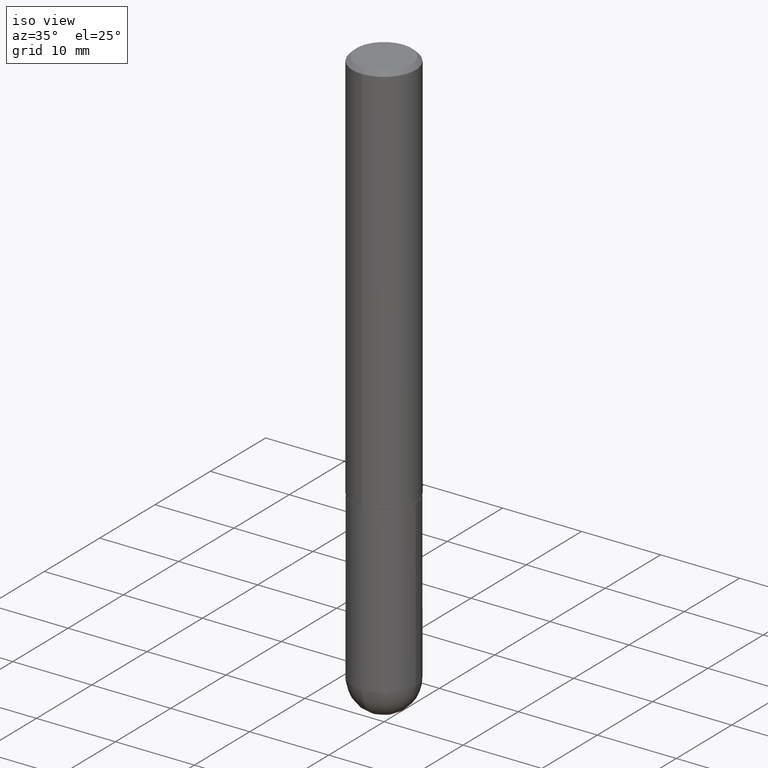
[diagram: clean part render]
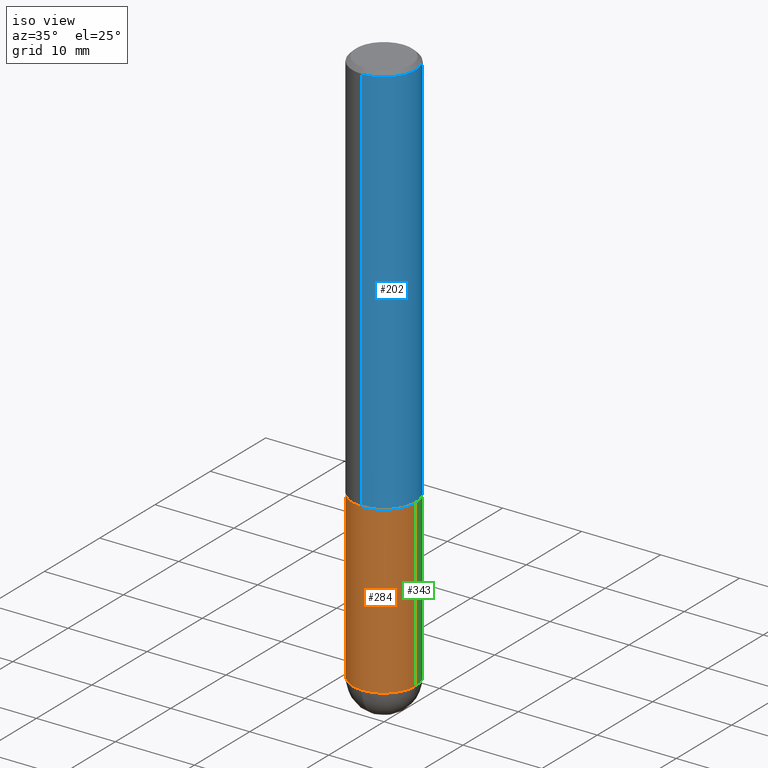
[diagram: same view with three faces highlighted in distinct colors, each labeled with its STEP entity id]
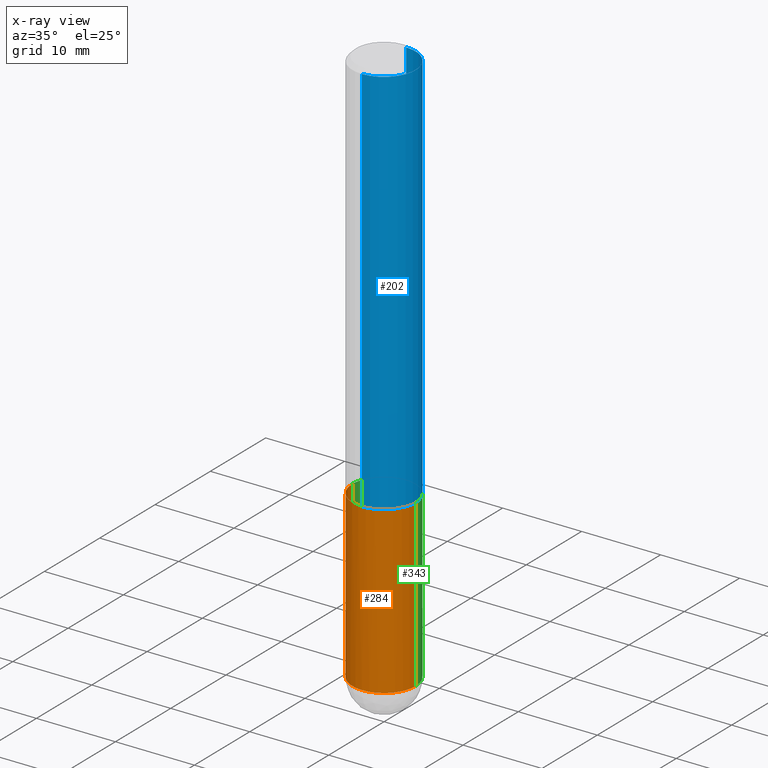
[diagram: x-ray of the same camera — body ghosted, the three highlighted faces saturated]
A machine part, iso view with three faces highlighted in distinct colors.
The next image is the same camera in x-ray (body ghosted, the three faces saturated) — at least one of them is partly hidden behind the body in this view.
Their STEP definitions:

[orange] entity #284 — the highlighted cylindrical surface (partial cylindrical patch) has radius 4.0005 mm, axis along (-0, 0, 1).
#1 = DIRECTION ( 'NONE',  ( 1.000000000000000000, -6.982962677686268288E-15, 0.000000000000000000 ) ) ;
#47 = CIRCLE ( 'NONE', #152, 0.1575000000000000011 ) ;
#49 = CARTESIAN_POINT ( 'NONE',  ( -0.1575000000000000011, 1.119104808822157801E-15, -7.747322767151475583E-30 ) ) ;
#51 = AXIS2_PLACEMENT_3D ( 'NONE', #79, #121, #275 ) ;
#64 = AXIS2_PLACEMENT_3D ( 'NONE', #351, #138, #1 ) ;
#69 = DIRECTION ( 'NONE',  ( -2.445468806185136597E-29, 3.491481338843145583E-15, 1.000000000000000000 ) ) ;
#79 = CARTESIAN_POINT ( 'NONE',  ( 0.000000000000000000, 0.000000000000000000, 0.000000000000000000 ) ) ;
#93 = VERTEX_POINT ( 'NONE', #329 ) ;
#118 = CYLINDRICAL_SURFACE ( 'NONE', #51, 0.1575000000000000011 ) ;
#120 = DIRECTION ( 'NONE',  ( -2.445468806185136597E-29, 3.491481338843145583E-15, 1.000000000000000000 ) ) ;
#121 = DIRECTION ( 'NONE',  ( -2.445468806185136597E-29, 3.491481338843145583E-15, 1.000000000000000000 ) ) ;
#125 = VERTEX_POINT ( 'NONE', #200 ) ;
#138 = DIRECTION ( 'NONE',  ( -2.445468806185136597E-29, 3.491481338843145583E-15, 1.000000000000000000 ) ) ;
#152 = AXIS2_PLACEMENT_3D ( 'NONE', #356, #69, #271 ) ;
#158 = EDGE_LOOP ( 'NONE', ( #331, #342, #280, #285, #289 ) ) ;
#163 = EDGE_CURVE ( 'NONE', #93, #320, #171, .T. ) ;
#171 = LINE ( 'NONE', #211, #326 ) ;
#186 = FACE_OUTER_BOUND ( 'NONE', #158, .T. ) ;
#199 = EDGE_CURVE ( 'NONE', #363, #125, #47, .T. ) ;
#200 = CARTESIAN_POINT ( 'NONE',  ( -1.119104808822091931E-15, -0.1575000000000101319, -2.795299999999998786 ) ) ;
#211 = CARTESIAN_POINT ( 'NONE',  ( 0.1575000000000000011, -1.099816621735586889E-15, 7.679978421878598033E-30 ) ) ;
#224 = VERTEX_POINT ( 'NONE', #240 ) ;
#229 = EDGE_CURVE ( 'NONE', #363, #224, #273, .T. ) ;
#232 = CARTESIAN_POINT ( 'NONE',  ( -0.1575000000000000011, -7.197254592168330052E-15, -2.795299999999999674 ) ) ;
#240 = CARTESIAN_POINT ( 'NONE',  ( -0.1575000000000000011, -7.197254592168330052E-15, -1.968499999999999694 ) ) ;
#247 = DIRECTION ( 'NONE',  ( 1.000000000000000000, -6.982962677686261977E-15, 0.000000000000000000 ) ) ;
#253 = CIRCLE ( 'NONE', #64, 0.1575000000000000011 ) ;
#271 = DIRECTION ( 'NONE',  ( 1.000000000000000000, -6.982962677686261977E-15, 0.000000000000000000 ) ) ;
#273 = LINE ( 'NONE', #49, #384 ) ;
#275 = DIRECTION ( 'NONE',  ( 1.000000000000000000, -6.982962677686265922E-15, 4.876176775795935232E-29 ) ) ;
#280 = ORIENTED_EDGE ( 'NONE', *, *, #295, .T. ) ;
#284 = ADVANCED_FACE ( 'NONE', ( #186 ), #118, .T. ) ;
#285 = ORIENTED_EDGE ( 'NONE', *, *, #163, .T. ) ;
#287 = AXIS2_PLACEMENT_3D ( 'NONE', #401, #120, #247 ) ;
#289 = ORIENTED_EDGE ( 'NONE', *, *, #324, .F. ) ;
#295 = EDGE_CURVE ( 'NONE', #125, #93, #412, .T. ) ;
#320 = VERTEX_POINT ( 'NONE', #322 ) ;
#322 = CARTESIAN_POINT ( 'NONE',  ( 0.1575000000000000011, -7.972797637248318399E-15, -1.968499999999999694 ) ) ;
#324 = EDGE_CURVE ( 'NONE', #224, #320, #253, .T. ) ;
#326 = VECTOR ( 'NONE', #332, 39.37007874015748143 ) ;
#329 = CARTESIAN_POINT ( 'NONE',  ( 0.1575000000000000011, -9.416176022726072770E-15, -2.795299999999999674 ) ) ;
#331 = ORIENTED_EDGE ( 'NONE', *, *, #229, .F. ) ;
#332 = DIRECTION ( 'NONE',  ( -2.445468806185136877E-29, 3.491481338843145188E-15, 1.000000000000000000 ) ) ;
#342 = ORIENTED_EDGE ( 'NONE', *, *, #199, .T. ) ;
#351 = CARTESIAN_POINT ( 'NONE',  ( 4.813905344975440714E-29, -6.872981015512730918E-15, -1.968499999999999694 ) ) ;
#356 = CARTESIAN_POINT ( 'NONE',  ( 6.835818953929311707E-29, -9.759737786468243605E-15, -2.795299999999999674 ) ) ;
#363 = VERTEX_POINT ( 'NONE', #232 ) ;
#384 = VECTOR ( 'NONE', #400, 39.37007874015748143 ) ;
#400 = DIRECTION ( 'NONE',  ( -2.445468806185136877E-29, 3.491481338843145188E-15, 1.000000000000000000 ) ) ;
#401 = CARTESIAN_POINT ( 'NONE',  ( 6.835818953929311707E-29, -9.759737786468243605E-15, -2.795299999999999674 ) ) ;
#412 = CIRCLE ( 'NONE', #287, 0.1575000000000000011 ) ;

[blue] entity #202 — the highlighted cylindrical surface (partial cylindrical patch) has radius 4.0005 mm, axis along (-0, 0, 1).
#5 = DIRECTION ( 'NONE',  ( -2.452606242276133797E-29, 3.481260124123203654E-15, 1.000000000000000000 ) ) ;
#8 = LINE ( 'NONE', #175, #260 ) ;
#12 = DIRECTION ( 'NONE',  ( -6.982962677686265922E-15, -1.000000000000000000, 3.469013325287948955E-15 ) ) ;
#24 = EDGE_CURVE ( 'NONE', #375, #65, #220, .T. ) ;
#31 = ORIENTED_EDGE ( 'NONE', *, *, #388, .F. ) ;
#44 = DIRECTION ( 'NONE',  ( -2.452606242276134078E-29, 3.481260124123204048E-15, 1.000000000000000000 ) ) ;
#57 = EDGE_CURVE ( 'NONE', #182, #65, #8, .T. ) ;
#65 = VERTEX_POINT ( 'NONE', #75 ) ;
#74 = DIRECTION ( 'NONE',  ( -2.452606242276134078E-29, 3.481260124123204048E-15, 1.000000000000000000 ) ) ;
#75 = CARTESIAN_POINT ( 'NONE',  ( 1.099816621735586889E-15, 0.1574999999999998901, -0.02000000000000057634 ) ) ;
#80 = AXIS2_PLACEMENT_3D ( 'NONE', #398, #5, #12 ) ;
#89 = VERTEX_POINT ( 'NONE', #300 ) ;
#97 = EDGE_LOOP ( 'NONE', ( #167, #258, #134, #31 ) ) ;
#100 = VECTOR ( 'NONE', #74, 39.37007874015748143 ) ;
#111 = DIRECTION ( 'NONE',  ( -2.452606242276133797E-29, 3.481260124123203654E-15, 1.000000000000000000 ) ) ;
#112 = CYLINDRICAL_SURFACE ( 'NONE', #126, 0.1575000000000000844 ) ;
#114 = EDGE_CURVE ( 'NONE', #89, #182, #368, .T. ) ;
#126 = AXIS2_PLACEMENT_3D ( 'NONE', #395, #111, #358 ) ;
#132 = LINE ( 'NONE', #319, #100 ) ;
#134 = ORIENTED_EDGE ( 'NONE', *, *, #24, .F. ) ;
#139 = CARTESIAN_POINT ( 'NONE',  ( 4.905212484552274391E-31, -6.962520248246417464E-17, -0.02000000000000003164 ) ) ;
#167 = ORIENTED_EDGE ( 'NONE', *, *, #114, .T. ) ;
#175 = CARTESIAN_POINT ( 'NONE',  ( 1.119104808822158195E-15, 0.1575000000000000844, -5.482984695494049531E-16 ) ) ;
#182 = VERTEX_POINT ( 'NONE', #265 ) ;
#202 = ADVANCED_FACE ( 'NONE', ( #397 ), #112, .T. ) ;
#220 = CIRCLE ( 'NONE', #230, 0.1574999999999999456 ) ;
#230 = AXIS2_PLACEMENT_3D ( 'NONE', #139, #296, #389 ) ;
#258 = ORIENTED_EDGE ( 'NONE', *, *, #57, .T. ) ;
#260 = VECTOR ( 'NONE', #44, 39.37007874015748143 ) ;
#265 = CARTESIAN_POINT ( 'NONE',  ( 1.119104808822183241E-15, 0.1574999999999933398, -1.967500000000000249 ) ) ;
#296 = DIRECTION ( 'NONE',  ( -2.452606242276133797E-29, 3.481260124123203654E-15, 1.000000000000000000 ) ) ;
#300 = CARTESIAN_POINT ( 'NONE',  ( -1.099816621735539951E-15, -0.1575000000000070510, -1.967499999999999138 ) ) ;
#319 = CARTESIAN_POINT ( 'NONE',  ( -1.099816621735587480E-15, -0.1575000000000000844, 5.482984695494049531E-16 ) ) ;
#355 = CARTESIAN_POINT ( 'NONE',  ( -1.080528434649015385E-15, -0.1575000000000000289, -0.01999999999999948347 ) ) ;
#358 = DIRECTION ( 'NONE',  ( -6.982962677686265922E-15, -1.000000000000000000, 3.481260124123204048E-15 ) ) ;
#368 = CIRCLE ( 'NONE', #80, 0.1575000000000001954 ) ;
#375 = VERTEX_POINT ( 'NONE', #355 ) ;
#388 = EDGE_CURVE ( 'NONE', #89, #375, #132, .T. ) ;
#389 = DIRECTION ( 'NONE',  ( -6.982962677686265922E-15, -1.000000000000000000, 3.469013325287954477E-15 ) ) ;
#395 = CARTESIAN_POINT ( 'NONE',  ( 0.000000000000000000, 0.000000000000000000, 0.000000000000000000 ) ) ;
#397 = FACE_OUTER_BOUND ( 'NONE', #97, .T. ) ;
#398 = CARTESIAN_POINT ( 'NONE',  ( 4.825502781678292621E-29, -6.849379294212400691E-15, -1.967499999999999805 ) ) ;

[green] entity #343 — the highlighted cylindrical surface (partial cylindrical patch) has radius 4.0005 mm, axis along (-0, 0, 1).
#10 = CARTESIAN_POINT ( 'NONE',  ( 6.835818953929311707E-29, -9.759737786468243605E-15, -2.795299999999999674 ) ) ;
#11 = DIRECTION ( 'NONE',  ( 1.000000000000000000, -6.982962677686265922E-15, 4.876176775795935232E-29 ) ) ;
#14 = CIRCLE ( 'NONE', #144, 0.1575000000000000011 ) ;
#23 = CIRCLE ( 'NONE', #105, 0.1575000000000000011 ) ;
#49 = CARTESIAN_POINT ( 'NONE',  ( -0.1575000000000000011, 1.119104808822157801E-15, -7.747322767151475583E-30 ) ) ;
#50 = ORIENTED_EDGE ( 'NONE', *, *, #315, .T. ) ;
#59 = AXIS2_PLACEMENT_3D ( 'NONE', #104, #357, #11 ) ;
#93 = VERTEX_POINT ( 'NONE', #329 ) ;
#104 = CARTESIAN_POINT ( 'NONE',  ( 0.000000000000000000, 0.000000000000000000, 0.000000000000000000 ) ) ;
#105 = AXIS2_PLACEMENT_3D ( 'NONE', #151, #403, #150 ) ;
#119 = VERTEX_POINT ( 'NONE', #201 ) ;
#133 = CARTESIAN_POINT ( 'NONE',  ( 4.813905344975440714E-29, -6.872981015512730918E-15, -1.968499999999999694 ) ) ;
#140 = DIRECTION ( 'NONE',  ( -2.445468806185136597E-29, 3.491481338843145583E-15, 1.000000000000000000 ) ) ;
#144 = AXIS2_PLACEMENT_3D ( 'NONE', #10, #140, #269 ) ;
#150 = DIRECTION ( 'NONE',  ( 1.000000000000000000, -6.982962677686261977E-15, 0.000000000000000000 ) ) ;
#151 = CARTESIAN_POINT ( 'NONE',  ( 6.835818953929311707E-29, -9.759737786468243605E-15, -2.795299999999999674 ) ) ;
#161 = EDGE_LOOP ( 'NONE', ( #312, #380, #221, #346, #50 ) ) ;
#163 = EDGE_CURVE ( 'NONE', #93, #320, #171, .T. ) ;
#171 = LINE ( 'NONE', #211, #326 ) ;
#177 = DIRECTION ( 'NONE',  ( -2.445468806185136597E-29, 3.491481338843145583E-15, 1.000000000000000000 ) ) ;
#201 = CARTESIAN_POINT ( 'NONE',  ( 1.099816621735654731E-15, 0.1574999999999901201, -2.795300000000000118 ) ) ;
#211 = CARTESIAN_POINT ( 'NONE',  ( 0.1575000000000000011, -1.099816621735586889E-15, 7.679978421878598033E-30 ) ) ;
#221 = ORIENTED_EDGE ( 'NONE', *, *, #360, .F. ) ;
#224 = VERTEX_POINT ( 'NONE', #240 ) ;
#229 = EDGE_CURVE ( 'NONE', #363, #224, #273, .T. ) ;
#232 = CARTESIAN_POINT ( 'NONE',  ( -0.1575000000000000011, -7.197254592168330052E-15, -2.795299999999999674 ) ) ;
#235 = FACE_OUTER_BOUND ( 'NONE', #161, .T. ) ;
#240 = CARTESIAN_POINT ( 'NONE',  ( -0.1575000000000000011, -7.197254592168330052E-15, -1.968499999999999694 ) ) ;
#257 = EDGE_CURVE ( 'NONE', #119, #363, #23, .T. ) ;
#269 = DIRECTION ( 'NONE',  ( 1.000000000000000000, -6.982962677686261977E-15, 0.000000000000000000 ) ) ;
#273 = LINE ( 'NONE', #49, #384 ) ;
#278 = CIRCLE ( 'NONE', #341, 0.1575000000000000011 ) ;
#288 = DIRECTION ( 'NONE',  ( 1.000000000000000000, -6.982962677686268288E-15, 0.000000000000000000 ) ) ;
#312 = ORIENTED_EDGE ( 'NONE', *, *, #257, .T. ) ;
#315 = EDGE_CURVE ( 'NONE', #93, #119, #14, .T. ) ;
#320 = VERTEX_POINT ( 'NONE', #322 ) ;
#322 = CARTESIAN_POINT ( 'NONE',  ( 0.1575000000000000011, -7.972797637248318399E-15, -1.968499999999999694 ) ) ;
#326 = VECTOR ( 'NONE', #332, 39.37007874015748143 ) ;
#329 = CARTESIAN_POINT ( 'NONE',  ( 0.1575000000000000011, -9.416176022726072770E-15, -2.795299999999999674 ) ) ;
#332 = DIRECTION ( 'NONE',  ( -2.445468806185136877E-29, 3.491481338843145188E-15, 1.000000000000000000 ) ) ;
#341 = AXIS2_PLACEMENT_3D ( 'NONE', #133, #177, #288 ) ;
#343 = ADVANCED_FACE ( 'NONE', ( #235 ), #361, .T. ) ;
#346 = ORIENTED_EDGE ( 'NONE', *, *, #163, .F. ) ;
#357 = DIRECTION ( 'NONE',  ( -2.445468806185136597E-29, 3.491481338843145583E-15, 1.000000000000000000 ) ) ;
#360 = EDGE_CURVE ( 'NONE', #320, #224, #278, .T. ) ;
#361 = CYLINDRICAL_SURFACE ( 'NONE', #59, 0.1575000000000000011 ) ;
#363 = VERTEX_POINT ( 'NONE', #232 ) ;
#380 = ORIENTED_EDGE ( 'NONE', *, *, #229, .T. ) ;
#384 = VECTOR ( 'NONE', #400, 39.37007874015748143 ) ;
#400 = DIRECTION ( 'NONE',  ( -2.445468806185136877E-29, 3.491481338843145188E-15, 1.000000000000000000 ) ) ;
#403 = DIRECTION ( 'NONE',  ( -2.445468806185136597E-29, 3.491481338843145583E-15, 1.000000000000000000 ) ) ;